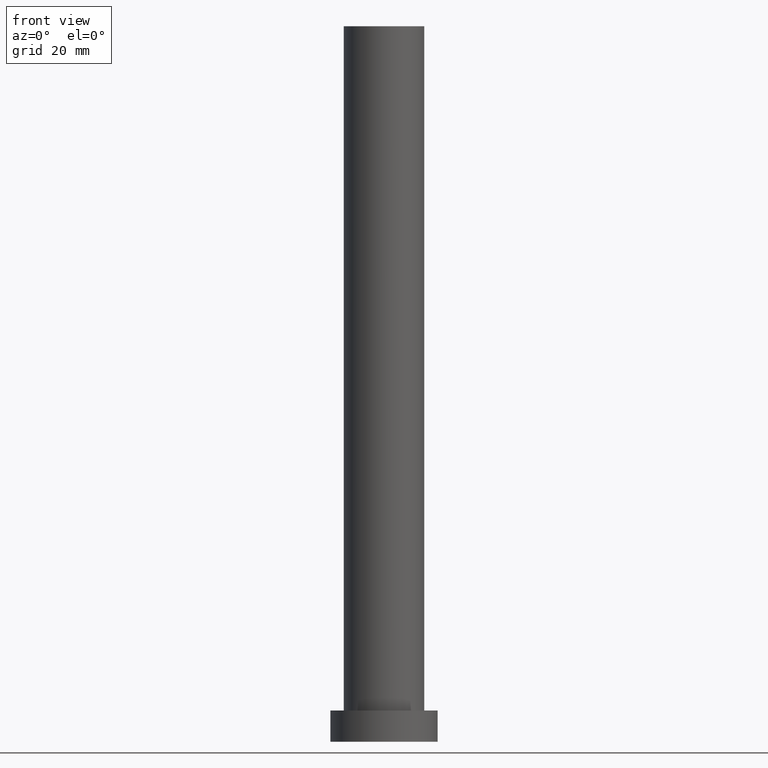
[diagram: clean part render]
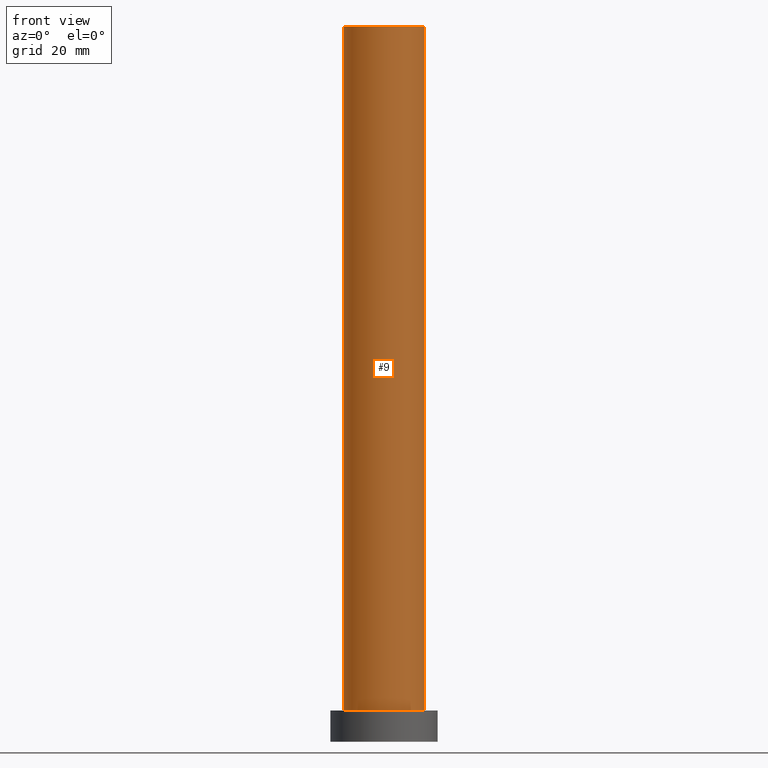
[diagram: same view with one face highlighted and labeled with its STEP entity id]
A machine part, front view. The second image highlights one B-rep face of the part: STEP entity #9.
In plain terms, the highlighted cylindrical surface (partial cylindrical patch) has radius 9 mm, axis along (-0, -0, -1).
Its self-contained STEP definition (entity closure, byte-faithful):
#1 = CARTESIAN_POINT ( 'NONE',  ( 9.000000000000000000, 1.102182119232617714E-15, 160.0000000000000000 ) ) ;
#2 = EDGE_CURVE ( 'NONE', #240, #110, #241, .T. ) ;
#4 = VECTOR ( 'NONE', #135, 1000.000000000000000 ) ;
#9 = ADVANCED_FACE ( 'NONE', ( #47 ), #129, .T. ) ;
#29 = AXIS2_PLACEMENT_3D ( 'NONE', #32, #92, #228 ) ;
#32 = CARTESIAN_POINT ( 'NONE',  ( 0.000000000000000000, 0.000000000000000000, 160.0000000000000000 ) ) ;
#41 = LINE ( 'NONE', #1, #4 ) ;
#47 = FACE_OUTER_BOUND ( 'NONE', #209, .T. ) ;
#52 = DIRECTION ( 'NONE',  ( -0.000000000000000000, -0.000000000000000000, -1.000000000000000000 ) ) ;
#56 = DIRECTION ( 'NONE',  ( -0.000000000000000000, -0.000000000000000000, -1.000000000000000000 ) ) ;
#58 = CARTESIAN_POINT ( 'NONE',  ( -9.000000000000000000, 0.000000000000000000, 160.0000000000000000 ) ) ;
#59 = CARTESIAN_POINT ( 'NONE',  ( 0.000000000000000000, 0.000000000000000000, 7.000000000000000000 ) ) ;
#67 = ORIENTED_EDGE ( 'NONE', *, *, #253, .F. ) ;
#78 = ORIENTED_EDGE ( 'NONE', *, *, #2, .F. ) ;
#86 = VECTOR ( 'NONE', #56, 1000.000000000000000 ) ;
#92 = DIRECTION ( 'NONE',  ( 0.000000000000000000, 0.000000000000000000, 1.000000000000000000 ) ) ;
#109 = ORIENTED_EDGE ( 'NONE', *, *, #175, .T. ) ;
#110 = VERTEX_POINT ( 'NONE', #158 ) ;
#115 = ORIENTED_EDGE ( 'NONE', *, *, #143, .T. ) ;
#117 = CARTESIAN_POINT ( 'NONE',  ( -9.000000000000000000, 0.000000000000000000, 7.000000000000000000 ) ) ;
#129 = CYLINDRICAL_SURFACE ( 'NONE', #243, 9.000000000000000000 ) ;
#135 = DIRECTION ( 'NONE',  ( -0.000000000000000000, -0.000000000000000000, -1.000000000000000000 ) ) ;
#138 = DIRECTION ( 'NONE',  ( 1.000000000000000000, 0.000000000000000000, 0.000000000000000000 ) ) ;
#143 = EDGE_CURVE ( 'NONE', #240, #245, #251, .T. ) ;
#144 = CIRCLE ( 'NONE', #184, 9.000000000000000000 ) ;
#158 = CARTESIAN_POINT ( 'NONE',  ( 9.000000000000000000, 1.102182119232617714E-15, 160.0000000000000000 ) ) ;
#166 = VERTEX_POINT ( 'NONE', #252 ) ;
#175 = EDGE_CURVE ( 'NONE', #245, #166, #144, .T. ) ;
#184 = AXIS2_PLACEMENT_3D ( 'NONE', #59, #214, #138 ) ;
#188 = DIRECTION ( 'NONE',  ( -1.000000000000000000, 0.000000000000000000, 0.000000000000000000 ) ) ;
#209 = EDGE_LOOP ( 'NONE', ( #67, #78, #115, #109 ) ) ;
#214 = DIRECTION ( 'NONE',  ( 0.000000000000000000, 0.000000000000000000, 1.000000000000000000 ) ) ;
#215 = CARTESIAN_POINT ( 'NONE',  ( -9.000000000000000000, 0.000000000000000000, 160.0000000000000000 ) ) ;
#228 = DIRECTION ( 'NONE',  ( 1.000000000000000000, 0.000000000000000000, 0.000000000000000000 ) ) ;
#232 = CARTESIAN_POINT ( 'NONE',  ( 0.000000000000000000, 0.000000000000000000, 160.0000000000000000 ) ) ;
#240 = VERTEX_POINT ( 'NONE', #215 ) ;
#241 = CIRCLE ( 'NONE', #29, 9.000000000000000000 ) ;
#243 = AXIS2_PLACEMENT_3D ( 'NONE', #232, #52, #188 ) ;
#245 = VERTEX_POINT ( 'NONE', #117 ) ;
#251 = LINE ( 'NONE', #58, #86 ) ;
#252 = CARTESIAN_POINT ( 'NONE',  ( 9.000000000000000000, 1.102182119232617714E-15, 7.000000000000000000 ) ) ;
#253 = EDGE_CURVE ( 'NONE', #110, #166, #41, .T. ) ;